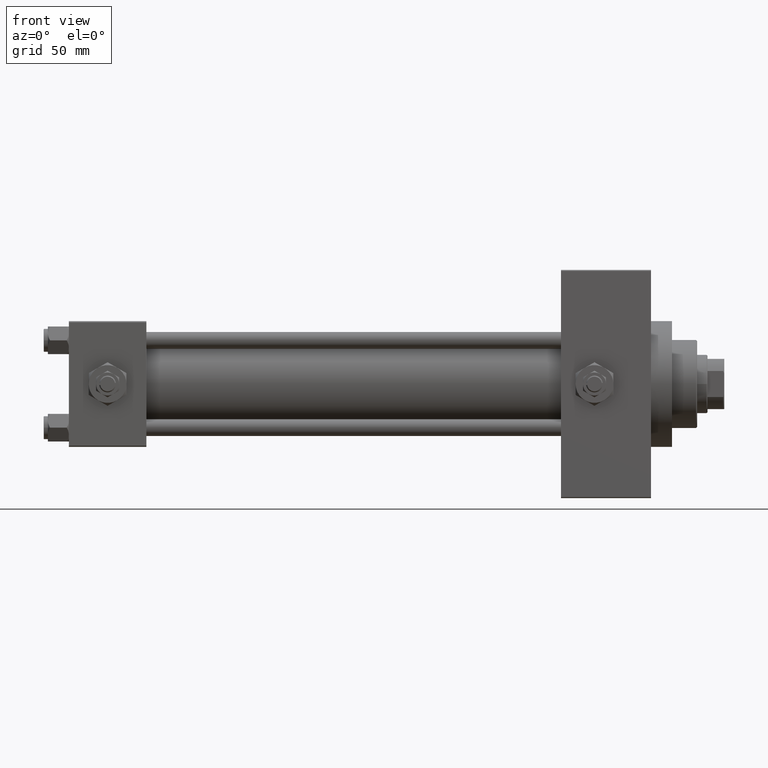
[diagram: clean part render]
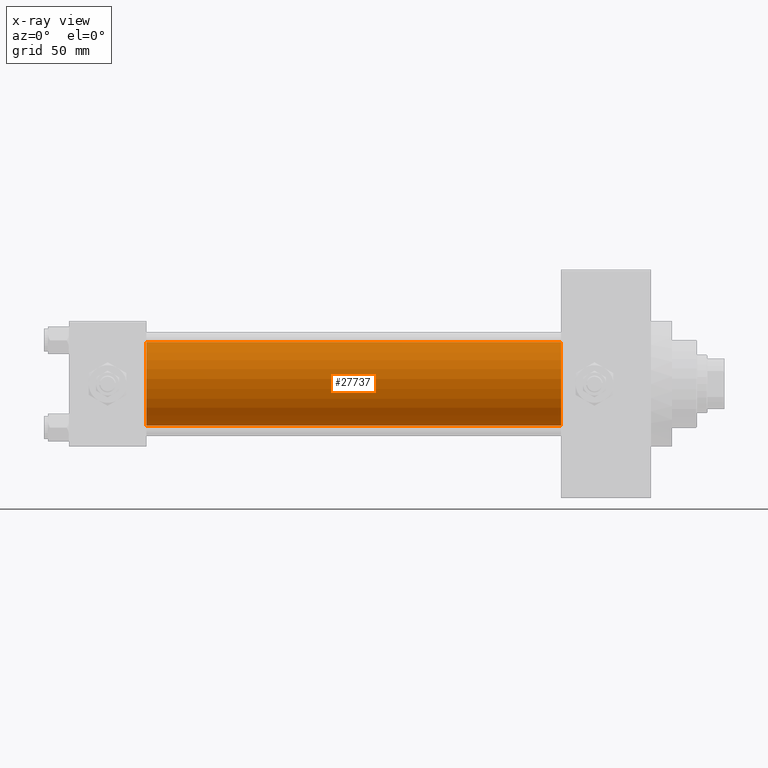
[diagram: x-ray — body ghosted, one internal face saturated and labeled with its STEP entity id]
A machine part, front view, then the same camera in x-ray: the body is ghosted and one INTERNAL B-rep face — a face not visible from any outside direction — is saturated and labeled: STEP entity #27737.
In plain terms, the highlighted cylindrical surface (partial cylindrical patch) has radius 20 mm, axis along (-1, -0, -0).
Its self-contained STEP definition (entity closure, byte-faithful):
#366 = DIRECTION ( 'NONE',  ( 1.000000000000000000, 0.000000000000000000, 0.000000000000000000 ) ) ;
#720 = VERTEX_POINT ( 'NONE', #48217 ) ;
#4907 = AXIS2_PLACEMENT_3D ( 'NONE', #11749, #33427, #38139 ) ;
#6322 = EDGE_CURVE ( 'NONE', #720, #33341, #45200, .T. ) ;
#7223 = ORIENTED_EDGE ( 'NONE', *, *, #30983, .T. ) ;
#7484 = ORIENTED_EDGE ( 'NONE', *, *, #6322, .F. ) ;
#8872 = EDGE_CURVE ( 'NONE', #720, #40669, #18436, .T. ) ;
#10293 = FACE_OUTER_BOUND ( 'NONE', #15717, .T. ) ;
#10455 = CARTESIAN_POINT ( 'NONE',  ( 37.00000000000000000, -1.527916156705042519E-16, -20.00000000000000000 ) ) ;
#10915 = ORIENTED_EDGE ( 'NONE', *, *, #8872, .T. ) ;
#11749 = CARTESIAN_POINT ( 'NONE',  ( 235.0000000000000284, -2.602085213965210642E-15, 0.000000000000000000 ) ) ;
#13604 = VECTOR ( 'NONE', #23254, 1000.000000000000000 ) ;
#14022 = LINE ( 'NONE', #29199, #26864 ) ;
#15717 = EDGE_LOOP ( 'NONE', ( #10915, #7223, #17032, #7484 ) ) ;
#17032 = ORIENTED_EDGE ( 'NONE', *, *, #48367, .F. ) ;
#18127 = VERTEX_POINT ( 'NONE', #10455 ) ;
#18436 = CIRCLE ( 'NONE', #4907, 20.00000000000000000 ) ;
#19924 = AXIS2_PLACEMENT_3D ( 'NONE', #42475, #366, #45486 ) ;
#22515 = CARTESIAN_POINT ( 'NONE',  ( 235.0000000000000284, -2.602085213965210642E-15, 20.00000000000000000 ) ) ;
#23254 = DIRECTION ( 'NONE',  ( -1.000000000000000000, -0.000000000000000000, -0.000000000000000000 ) ) ;
#26864 = VECTOR ( 'NONE', #43912, 1000.000000000000000 ) ;
#27737 = ADVANCED_FACE ( 'NONE', ( #10293 ), #28952, .F. ) ;
#28753 = CARTESIAN_POINT ( 'NONE',  ( 235.0000000000000284, -1.527916156705042519E-16, -20.00000000000000000 ) ) ;
#28952 = CYLINDRICAL_SURFACE ( 'NONE', #44305, 20.00000000000000000 ) ;
#29199 = CARTESIAN_POINT ( 'NONE',  ( 235.0000000000000284, -1.527916156705042519E-16, -20.00000000000000000 ) ) ;
#30983 = EDGE_CURVE ( 'NONE', #40669, #18127, #14022, .T. ) ;
#33341 = VERTEX_POINT ( 'NONE', #42487 ) ;
#33427 = DIRECTION ( 'NONE',  ( 1.000000000000000000, 0.000000000000000000, 0.000000000000000000 ) ) ;
#38139 = DIRECTION ( 'NONE',  ( 0.000000000000000000, 0.000000000000000000, -1.000000000000000000 ) ) ;
#39022 = CIRCLE ( 'NONE', #19924, 20.00000000000000000 ) ;
#40669 = VERTEX_POINT ( 'NONE', #28753 ) ;
#40672 = DIRECTION ( 'NONE',  ( 0.000000000000000000, 0.000000000000000000, 1.000000000000000000 ) ) ;
#40915 = CARTESIAN_POINT ( 'NONE',  ( 235.0000000000000284, -2.602085213965210642E-15, 0.000000000000000000 ) ) ;
#42475 = CARTESIAN_POINT ( 'NONE',  ( 37.00000000000000000, -2.602085213965210642E-15, 0.000000000000000000 ) ) ;
#42487 = CARTESIAN_POINT ( 'NONE',  ( 37.00000000000000000, -2.602085213965210642E-15, 20.00000000000000000 ) ) ;
#43669 = DIRECTION ( 'NONE',  ( -1.000000000000000000, -0.000000000000000000, -0.000000000000000000 ) ) ;
#43912 = DIRECTION ( 'NONE',  ( -1.000000000000000000, -0.000000000000000000, -0.000000000000000000 ) ) ;
#44305 = AXIS2_PLACEMENT_3D ( 'NONE', #40915, #43669, #40672 ) ;
#45200 = LINE ( 'NONE', #22515, #13604 ) ;
#45486 = DIRECTION ( 'NONE',  ( 0.000000000000000000, 0.000000000000000000, -1.000000000000000000 ) ) ;
#48217 = CARTESIAN_POINT ( 'NONE',  ( 235.0000000000000284, -2.602085213965210642E-15, 20.00000000000000000 ) ) ;
#48367 = EDGE_CURVE ( 'NONE', #33341, #18127, #39022, .T. ) ;